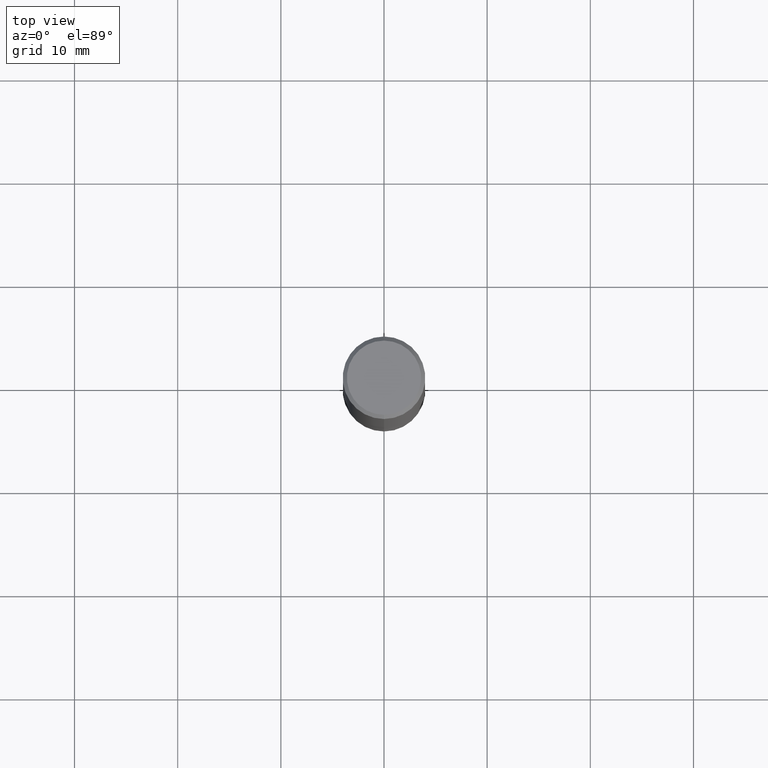
[diagram: clean part render]
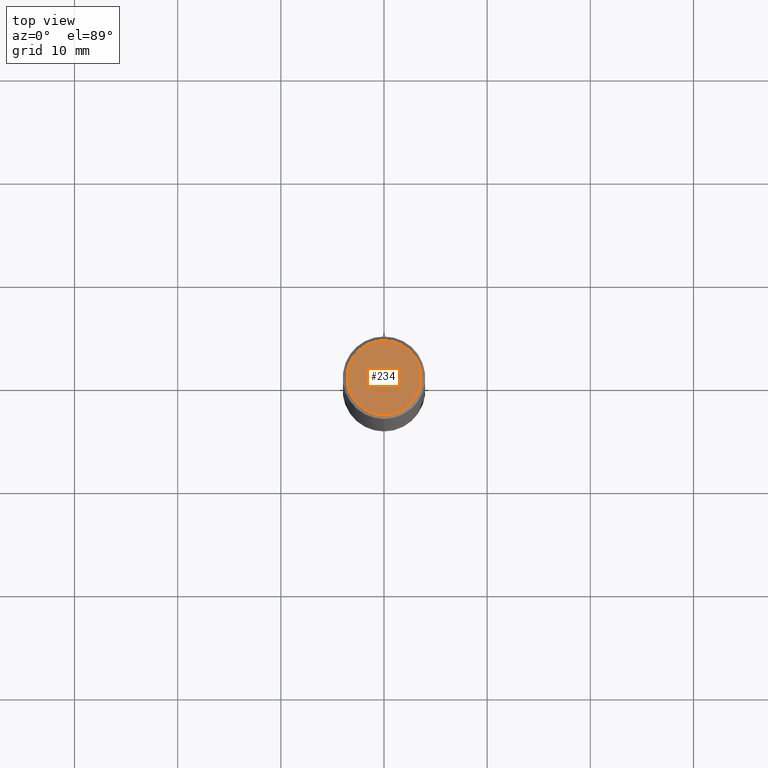
[diagram: same view with one face highlighted and labeled with its STEP entity id]
A machine part, top view. The second image highlights one B-rep face of the part: STEP entity #234.
In plain terms, the highlighted planar face has unit normal (-0, 0, 1).
Its self-contained STEP definition (entity closure, byte-faithful):
#108=VERTEX_POINT('',#269);
#178=VERTEX_POINT('',#350);
#194=EDGE_CURVE('',#108,#178,#367,.T.);
#208=EDGE_CURVE('',#178,#108,#383,.T.);
#234=ADVANCED_FACE('',(#413),#414,.T.);
#269=CARTESIAN_POINT('',(4.40858287376056E-016,-3.6,0.0));
#350=CARTESIAN_POINT('',(0.0,3.6,0.0));
#367=CIRCLE('',#565,3.6);
#383=CIRCLE('',#584,3.6);
#413=FACE_OUTER_BOUND('',#621,.T.);
#414=PLANE('',#622);
#565=AXIS2_PLACEMENT_3D('',#769,#770,#771);
#584=AXIS2_PLACEMENT_3D('',#789,#790,#791);
#621=EDGE_LOOP('',(#832,#833));
#622=AXIS2_PLACEMENT_3D('',#834,#835,#836);
#769=CARTESIAN_POINT('',(0.0,0.0,0.0));
#770=DIRECTION('',(0.0,0.0,-1.0));
#771=DIRECTION('',(0.0,1.0,0.0));
#789=CARTESIAN_POINT('',(0.0,0.0,0.0));
#790=DIRECTION('',(0.0,0.0,-1.0));
#791=DIRECTION('',(0.0,1.0,0.0));
#832=ORIENTED_EDGE('',*,*,#208,.F.);
#833=ORIENTED_EDGE('',*,*,#194,.F.);
#834=CARTESIAN_POINT('',(0.0,1.8,0.0));
#835=DIRECTION('',(-0.0,0.0,1.0));
#836=DIRECTION('',(0.0,-1.0,0.0));